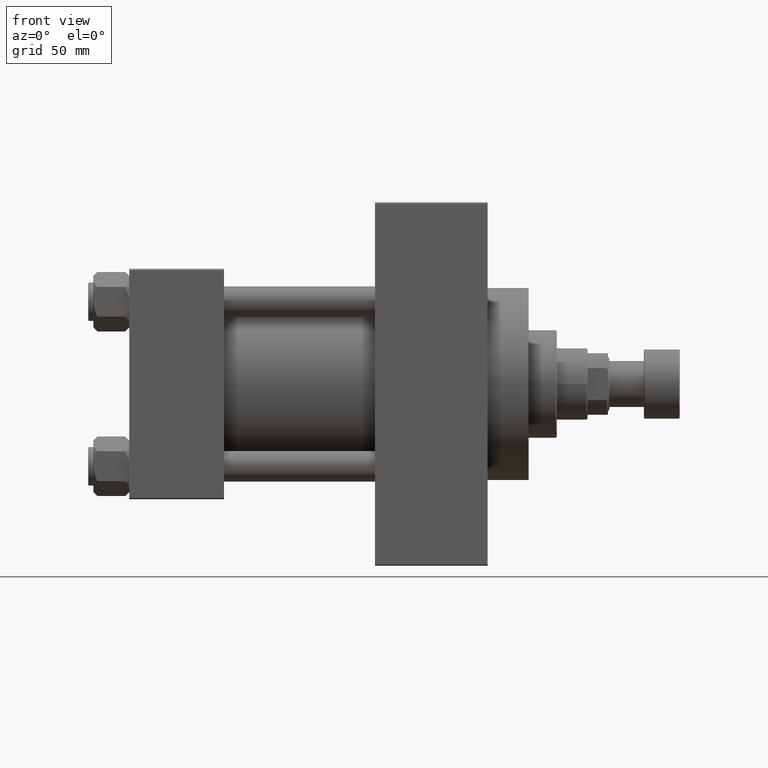
[diagram: clean part render]
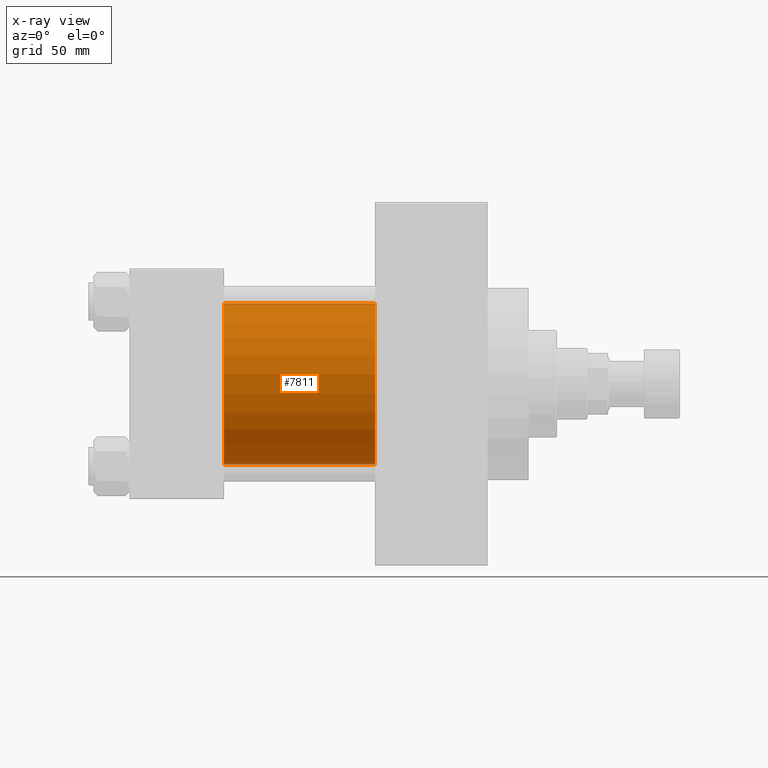
[diagram: x-ray — body ghosted, one internal face saturated and labeled with its STEP entity id]
A machine part, front view, then the same camera in x-ray: the body is ghosted and one INTERNAL B-rep face — a face not visible from any outside direction — is saturated and labeled: STEP entity #7811.
In plain terms, the highlighted cylindrical surface (partial cylindrical patch) has radius 31.5 mm, axis along (-1, -0, -0).
Its self-contained STEP definition (entity closure, byte-faithful):
#507 = CARTESIAN_POINT ( 'NONE',  ( 96.00000000000000000, -2.602085213965210642E-15, 31.50000000000000000 ) ) ;
#1395 = DIRECTION ( 'NONE',  ( -1.000000000000000000, -0.000000000000000000, -0.000000000000000000 ) ) ;
#1770 = VERTEX_POINT ( 'NONE', #41093 ) ;
#1966 = DIRECTION ( 'NONE',  ( -1.000000000000000000, -0.000000000000000000, -0.000000000000000000 ) ) ;
#7811 = ADVANCED_FACE ( 'NONE', ( #12731 ), #34200, .F. ) ;
#8592 = AXIS2_PLACEMENT_3D ( 'NONE', #34440, #1395, #34678 ) ;
#8913 = VERTEX_POINT ( 'NONE', #24754 ) ;
#12731 = FACE_OUTER_BOUND ( 'NONE', #16800, .T. ) ;
#14440 = DIRECTION ( 'NONE',  ( 1.000000000000000000, 0.000000000000000000, 0.000000000000000000 ) ) ;
#15139 = CARTESIAN_POINT ( 'NONE',  ( 96.00000000000000000, -2.602085213965210642E-15, 0.000000000000000000 ) ) ;
#15224 = DIRECTION ( 'NONE',  ( -1.000000000000000000, -0.000000000000000000, -0.000000000000000000 ) ) ;
#15884 = VECTOR ( 'NONE', #1966, 1000.000000000000000 ) ;
#16800 = EDGE_LOOP ( 'NONE', ( #39205, #18652, #18922, #22275 ) ) ;
#18652 = ORIENTED_EDGE ( 'NONE', *, *, #31126, .T. ) ;
#18922 = ORIENTED_EDGE ( 'NONE', *, *, #44187, .F. ) ;
#19364 = CARTESIAN_POINT ( 'NONE',  ( 37.00000000000000000, 1.255552203348951850E-15, -31.50000000000000000 ) ) ;
#20537 = CARTESIAN_POINT ( 'NONE',  ( 96.00000000000000000, 1.255552203348951850E-15, -31.50000000000000000 ) ) ;
#21681 = DIRECTION ( 'NONE',  ( 0.000000000000000000, 0.000000000000000000, -1.000000000000000000 ) ) ;
#22275 = ORIENTED_EDGE ( 'NONE', *, *, #34936, .F. ) ;
#22707 = LINE ( 'NONE', #507, #30509 ) ;
#24754 = CARTESIAN_POINT ( 'NONE',  ( 96.00000000000000000, 1.255552203348951850E-15, -31.50000000000000000 ) ) ;
#26949 = CARTESIAN_POINT ( 'NONE',  ( 37.00000000000000000, -2.602085213965210642E-15, 0.000000000000000000 ) ) ;
#27194 = CARTESIAN_POINT ( 'NONE',  ( 96.00000000000000000, -2.602085213965210642E-15, 31.50000000000000000 ) ) ;
#27294 = LINE ( 'NONE', #20537, #15884 ) ;
#29322 = AXIS2_PLACEMENT_3D ( 'NONE', #15139, #14440, #21681 ) ;
#30509 = VECTOR ( 'NONE', #15224, 1000.000000000000000 ) ;
#31126 = EDGE_CURVE ( 'NONE', #8913, #41891, #27294, .T. ) ;
#33384 = VERTEX_POINT ( 'NONE', #27194 ) ;
#34200 = CYLINDRICAL_SURFACE ( 'NONE', #8592, 31.50000000000000000 ) ;
#34440 = CARTESIAN_POINT ( 'NONE',  ( 96.00000000000000000, -2.602085213965210642E-15, 0.000000000000000000 ) ) ;
#34678 = DIRECTION ( 'NONE',  ( 0.000000000000000000, 0.000000000000000000, 1.000000000000000000 ) ) ;
#34936 = EDGE_CURVE ( 'NONE', #33384, #1770, #22707, .T. ) ;
#37348 = DIRECTION ( 'NONE',  ( 1.000000000000000000, 0.000000000000000000, 0.000000000000000000 ) ) ;
#37905 = AXIS2_PLACEMENT_3D ( 'NONE', #26949, #37348, #41903 ) ;
#39205 = ORIENTED_EDGE ( 'NONE', *, *, #41195, .T. ) ;
#41093 = CARTESIAN_POINT ( 'NONE',  ( 37.00000000000000000, -2.602085213965210642E-15, 31.50000000000000000 ) ) ;
#41195 = EDGE_CURVE ( 'NONE', #33384, #8913, #41636, .T. ) ;
#41636 = CIRCLE ( 'NONE', #29322, 31.50000000000000000 ) ;
#41891 = VERTEX_POINT ( 'NONE', #19364 ) ;
#41903 = DIRECTION ( 'NONE',  ( 0.000000000000000000, 0.000000000000000000, -1.000000000000000000 ) ) ;
#44187 = EDGE_CURVE ( 'NONE', #1770, #41891, #45596, .T. ) ;
#45596 = CIRCLE ( 'NONE', #37905, 31.50000000000000000 ) ;